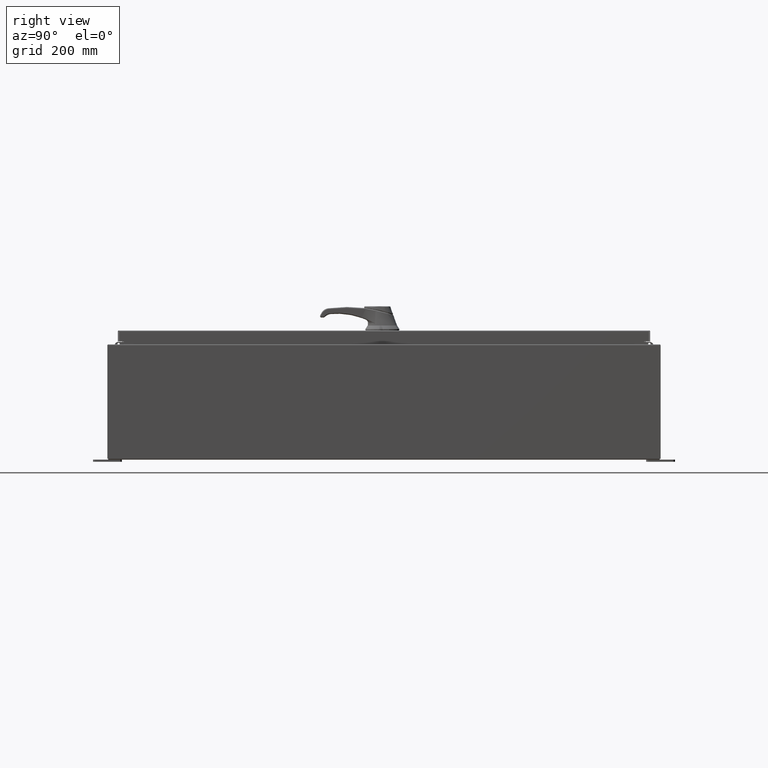
[diagram: clean part render]
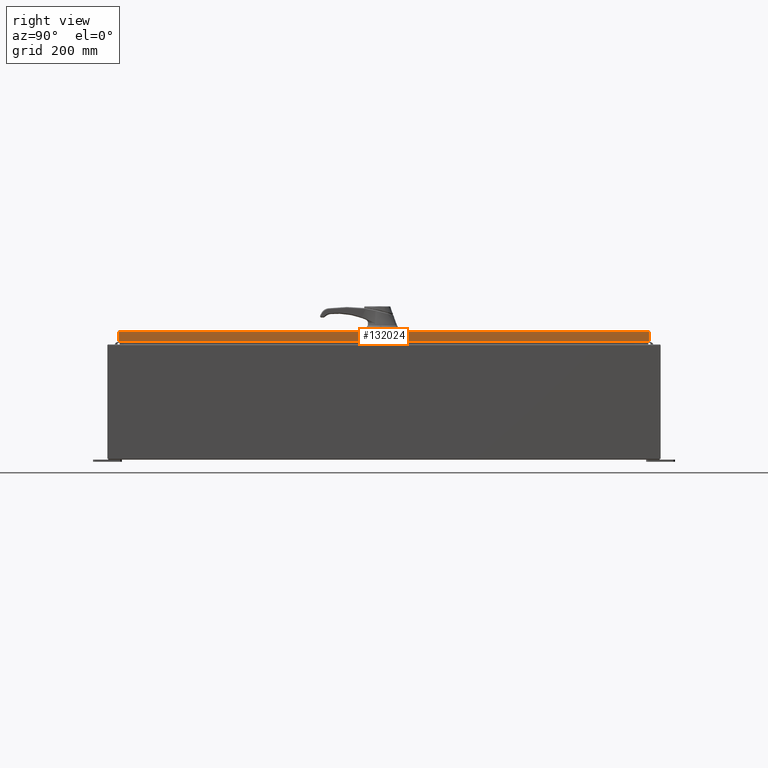
[diagram: same view with one face highlighted and labeled with its STEP entity id]
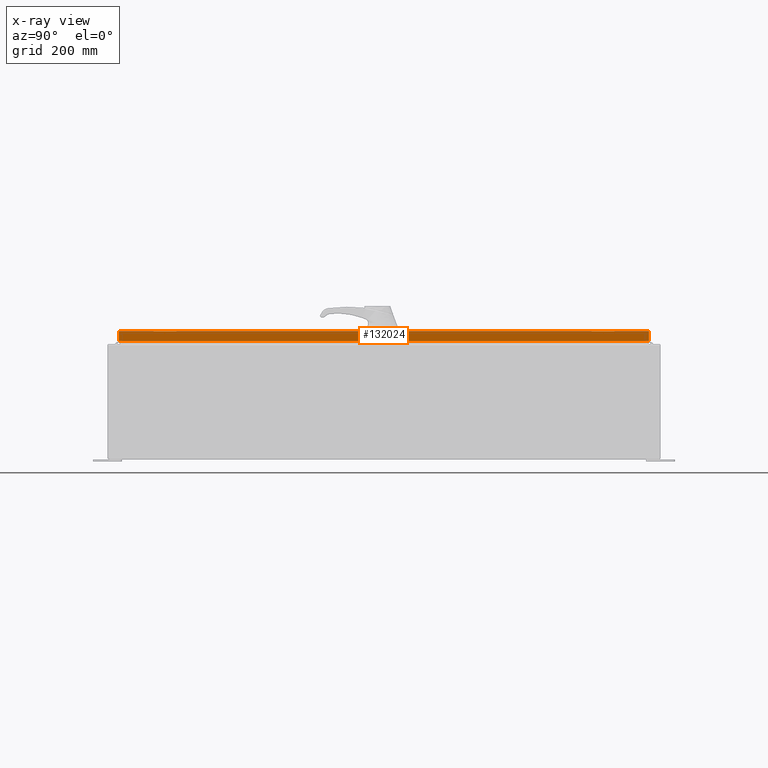
[diagram: x-ray of the same camera — body ghosted, the highlighted face saturated]
A machine part, right view. The second image highlights one B-rep face of the part: STEP entity #132024.
The next image is the same camera in x-ray: the body ghosted, the highlighted face saturated — about 0% of this face is hidden behind the body in this view.
In plain terms, the highlighted planar face has unit normal (1, 0, 0).
Its self-contained STEP definition (entity closure, byte-faithful):
#2003 = DIRECTION ( 'NONE',  ( -2.532419924601866100E-015, -6.982962677686265900E-015, 1.000000000000000000 ) ) ;
#2701 = LINE ( 'NONE', #93917, #54107 ) ;
#15319 = CARTESIAN_POINT ( 'NONE',  ( 17.07799999999999900, 0.0000000000000000000, -0.08770000000000008300 ) ) ;
#22264 = CARTESIAN_POINT ( 'NONE',  ( 17.07800000000000300, -23.00515786437626200, -0.9376999999999997600 ) ) ;
#25631 = DIRECTION ( 'NONE',  ( 0.0000000000000000000, -1.000000000000000000, 0.0000000000000000000 ) ) ;
#25873 = CARTESIAN_POINT ( 'NONE',  ( 17.07800000000000300, -23.09400000000000100, -0.9376999999999997600 ) ) ;
#28878 = VECTOR ( 'NONE', #97552, 39.37007874015748100 ) ;
#32499 = PLANE ( 'NONE',  #62415 ) ;
#35573 = ORIENTED_EDGE ( 'NONE', *, *, #57264, .F. ) ;
#39170 = FACE_OUTER_BOUND ( 'NONE', #108811, .T. ) ;
#43424 = VECTOR ( 'NONE', #113082, 39.37007874015748100 ) ;
#43781 = LINE ( 'NONE', #15319, #94993 ) ;
#47050 = VERTEX_POINT ( 'NONE', #98703 ) ;
#50263 = VERTEX_POINT ( 'NONE', #50625 ) ;
#50625 = CARTESIAN_POINT ( 'NONE',  ( 17.07799999999999900, 23.00515786437627200, -0.08770000000000008300 ) ) ;
#53155 = DIRECTION ( 'NONE',  ( 1.000000000000000000, 0.0000000000000000000, 2.532419924601866100E-015 ) ) ;
#54107 = VECTOR ( 'NONE', #2003, 39.37007874015748100 ) ;
#54972 = ORIENTED_EDGE ( 'NONE', *, *, #108239, .F. ) ;
#56164 = LINE ( 'NONE', #25873, #28878 ) ;
#57264 = EDGE_CURVE ( 'NONE', #72140, #130366, #56164, .T. ) ;
#62415 = AXIS2_PLACEMENT_3D ( 'NONE', #114484, #53155, #124766 ) ;
#72140 = VERTEX_POINT ( 'NONE', #100723 ) ;
#85274 = EDGE_CURVE ( 'NONE', #50263, #47050, #43781, .T. ) ;
#93917 = CARTESIAN_POINT ( 'NONE',  ( 17.07799999999999900, 23.00515786437627600, 2.041536398895824600E-013 ) ) ;
#94993 = VECTOR ( 'NONE', #25631, 39.37007874015748100 ) ;
#97552 = DIRECTION ( 'NONE',  ( 0.0000000000000000000, -1.000000000000000000, 0.0000000000000000000 ) ) ;
#98703 = CARTESIAN_POINT ( 'NONE',  ( 17.07799999999999900, -23.00515786437626900, -0.08770000000000008300 ) ) ;
#100723 = CARTESIAN_POINT ( 'NONE',  ( 17.07800000000000300, 23.00515786437628000, -0.9376999999999997600 ) ) ;
#101866 = ORIENTED_EDGE ( 'NONE', *, *, #85274, .T. ) ;
#102783 = CARTESIAN_POINT ( 'NONE',  ( 17.07799999999999900, -23.00515786437626900, -0.07469999999999980800 ) ) ;
#108239 = EDGE_CURVE ( 'NONE', #130366, #47050, #121917, .T. ) ;
#108811 = EDGE_LOOP ( 'NONE', ( #54972, #35573, #118655, #101866 ) ) ;
#111662 = EDGE_CURVE ( 'NONE', #72140, #50263, #2701, .T. ) ;
#113082 = DIRECTION ( 'NONE',  ( -2.532419924601866100E-015, -6.982962677686265900E-015, 1.000000000000000000 ) ) ;
#114484 = CARTESIAN_POINT ( 'NONE',  ( 17.07799999999999900, 0.0000000000000000000, 4.350948112836224800E-014 ) ) ;
#118655 = ORIENTED_EDGE ( 'NONE', *, *, #111662, .T. ) ;
#121917 = LINE ( 'NONE', #102783, #43424 ) ;
#124766 = DIRECTION ( 'NONE',  ( 2.532419924601866100E-015, 0.0000000000000000000, -1.000000000000000000 ) ) ;
#130366 = VERTEX_POINT ( 'NONE', #22264 ) ;
#132024 = ADVANCED_FACE ( 'NONE', ( #39170 ), #32499, .T. ) ;